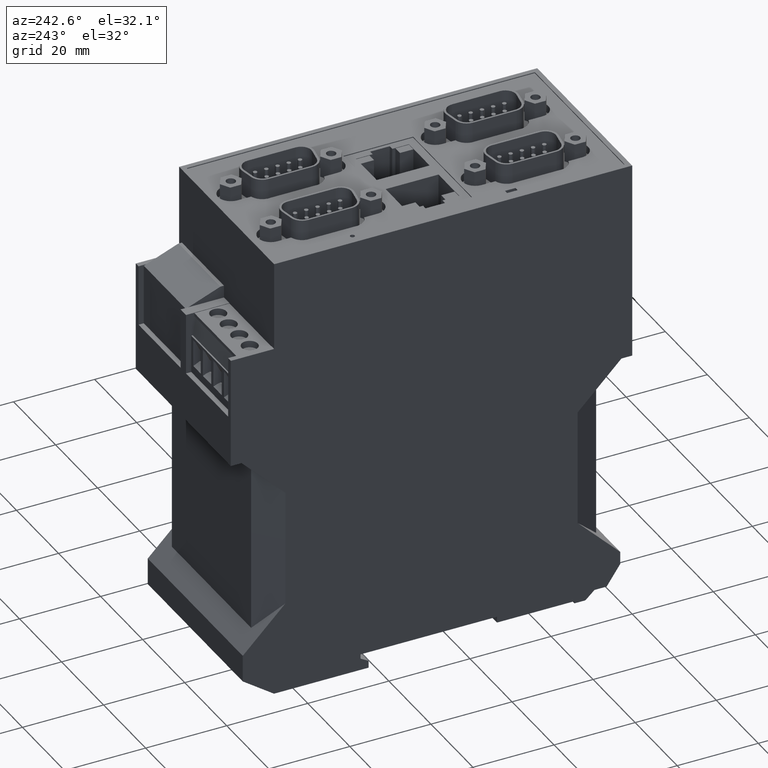
[diagram: clean part render]
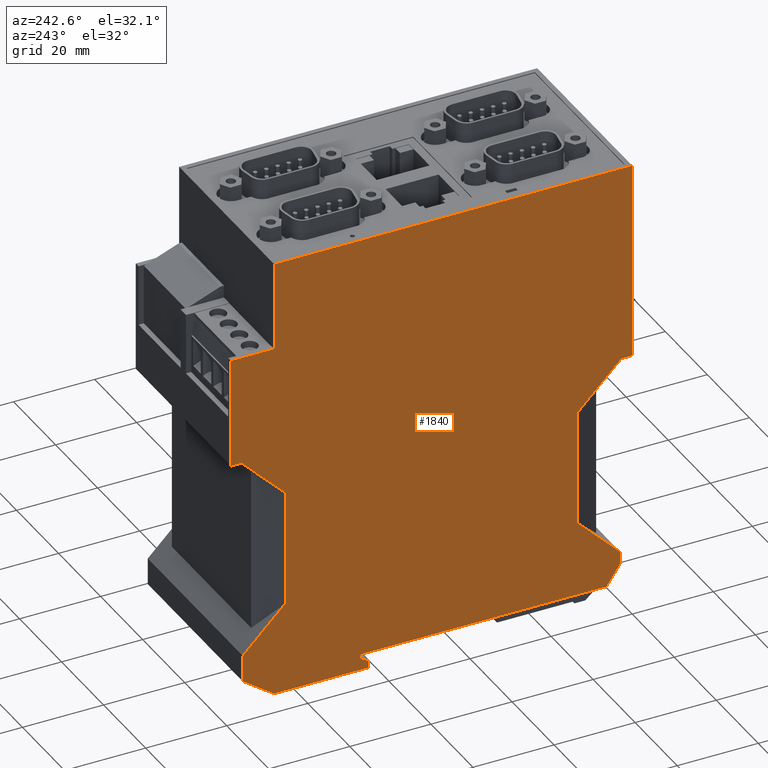
[diagram: same view with one face highlighted and labeled with its STEP entity id]
A machine part, auxiliary view. The second image highlights one B-rep face of the part: STEP entity #1840.
In plain terms, the highlighted planar face has unit normal (-1, 0, 0).
Its self-contained STEP definition (entity closure, byte-faithful):
#10=CARTESIAN_POINT('',(24.,24.,-11.3));
#20=DIRECTION('',(0.,0.,-1.));
#30=DIRECTION('',(-1.,0.,0.));
#40=AXIS2_PLACEMENT_3D('',#10,#20,#30);
#50=PLANE('',#40);
#60=CARTESIAN_POINT('',(24.,-7.14095449438901E-13,-11.3));
#70=DIRECTION('',(1.,-1.44E-14,-0.));
#80=VECTOR('',#70,1.);
#90=LINE('',#60,#80);
#100=CARTESIAN_POINT('',(-60.7000000000028,5.04485342389671E-13,-11.3));
#110=VERTEX_POINT('',#100);
#120=CARTESIAN_POINT('',(-1.76925141204265E-12,-3.69482222595252E-13,
-11.3));
#130=VERTEX_POINT('',#120);
#140=EDGE_CURVE('',#110,#130,#90,.T.);
#150=ORIENTED_EDGE('',*,*,#140,.F.);
#160=CARTESIAN_POINT('',(-1.76925141204265E-12,-3.69482222595252E-13,
-11.3));
#170=DIRECTION('',(-3.23004482157597E-15,-1.,0.));
#180=VECTOR('',#170,1.);
#190=LINE('',#160,#180);
#200=CARTESIAN_POINT('',(-1.76925141204265E-12,-1.09989609279425,-11.3))
;
#210=VERTEX_POINT('',#200);
#220=EDGE_CURVE('',#130,#210,#190,.T.);
#230=ORIENTED_EDGE('',*,*,#220,.F.);
#240=CARTESIAN_POINT('',(-1.77280412572145E-12,-1.09989609279425,-11.3))
;
#250=DIRECTION('',(-0.86602540378446,-0.499999999999964,0.));
#260=VECTOR('',#250,1.);
#270=LINE('',#240,#260);
#280=CARTESIAN_POINT('',(-2.00000000000178,-2.25459663117339,-11.3));
#290=VERTEX_POINT('',#280);
#300=EDGE_CURVE('',#210,#290,#270,.T.);
#310=ORIENTED_EDGE('',*,*,#300,.F.);
#320=CARTESIAN_POINT('',(-2.00000000000288,24.,-11.3));
#330=DIRECTION('',(4.27899157140077E-14,-1.,-0.));
#340=VECTOR('',#330,1.);
#350=LINE('',#320,#340);
#360=CARTESIAN_POINT('',(-2.00000000000178,-4.00000000000004,-11.3));
#370=VERTEX_POINT('',#360);
#380=EDGE_CURVE('',#290,#370,#350,.T.);
#390=ORIENTED_EDGE('',*,*,#380,.F.);
#400=CARTESIAN_POINT('',(24.,-4.00000000000004,-11.3));
#410=DIRECTION('',(1.,4.80965890943096E-26,0.));
#420=VECTOR('',#410,1.);
#430=LINE('',#400,#420);
#440=CARTESIAN_POINT('',(21.3380007636733,-4.00000000000004,-11.3));
#450=VERTEX_POINT('',#440);
#460=EDGE_CURVE('',#370,#450,#430,.T.);
#470=ORIENTED_EDGE('',*,*,#460,.F.);
#480=CARTESIAN_POINT('',(24.,-2.13604806801552,-11.3));
#490=DIRECTION('',(0.819152044288986,0.573576436351054,0.));
#500=VECTOR('',#490,1.);
#510=LINE('',#480,#500);
#520=CARTESIAN_POINT('',(29.0500000000947,1.40000000000989,-11.3));
#530=VERTEX_POINT('',#520);
#540=EDGE_CURVE('',#450,#530,#510,.T.);
#550=ORIENTED_EDGE('',*,*,#540,.F.);
#560=CARTESIAN_POINT('',(29.0500000000947,1.40000000001025,-11.3));
#570=DIRECTION('',(2.15315980533829E-15,1.,0.));
#580=VECTOR('',#570,1.);
#590=LINE('',#560,#580);
#600=CARTESIAN_POINT('',(29.0500000000947,7.99999999999599,-11.3));
#610=VERTEX_POINT('',#600);
#620=EDGE_CURVE('',#530,#610,#590,.T.);
#630=ORIENTED_EDGE('',*,*,#620,.F.);
#640=CARTESIAN_POINT('',(24.,13.0500000000897,-11.3));
#650=DIRECTION('',(-0.707106781186613,0.707106781186482,0.));
#660=VECTOR('',#650,1.);
#670=LINE('',#640,#660);
#680=CARTESIAN_POINT('',(18.55000000009,18.4999999999987,-11.3));
#690=VERTEX_POINT('',#680);
#700=EDGE_CURVE('',#610,#690,#670,.T.);
#710=ORIENTED_EDGE('',*,*,#700,.F.);
#720=CARTESIAN_POINT('',(18.5500000000901,24.,-11.3));
#730=DIRECTION('',(4.E-15,1.,0.));
#740=VECTOR('',#730,1.);
#750=LINE('',#720,#740);
#760=CARTESIAN_POINT('',(18.5500000000902,47.1000000000011,-11.3));
#770=VERTEX_POINT('',#760);
#780=EDGE_CURVE('',#690,#770,#750,.T.);
#790=ORIENTED_EDGE('',*,*,#780,.F.);
#800=CARTESIAN_POINT('',(24.,52.5499999999109,-11.3));
#810=DIRECTION('',(0.707106781186551,0.707106781186544,0.));
#820=VECTOR('',#810,1.);
#830=LINE('',#800,#820);
#840=CARTESIAN_POINT('',(29.3500000000902,57.900000000001,-11.3));
#850=VERTEX_POINT('',#840);
#860=EDGE_CURVE('',#770,#850,#830,.T.);
#870=ORIENTED_EDGE('',*,*,#860,.F.);
#880=CARTESIAN_POINT('',(24.,57.9000000000005,-11.3));
#890=DIRECTION('',(1.,9.89E-14,0.));
#900=VECTOR('',#890,1.);
#910=LINE('',#880,#900);
#920=CARTESIAN_POINT('',(32.0000000000386,57.9000000000013,-11.3));
#930=VERTEX_POINT('',#920);
#940=EDGE_CURVE('',#850,#930,#910,.T.);
#950=ORIENTED_EDGE('',*,*,#940,.F.);
#960=CARTESIAN_POINT('',(32.0000000000633,24.,-11.3));
#970=DIRECTION('',(7.27300000002176E-13,-1.,-0.));
#980=VECTOR('',#970,1.);
#990=LINE('',#960,#980);
#1000=CARTESIAN_POINT('',(32.0000000000188,85.1000000000079,-11.3));
#1010=VERTEX_POINT('',#1000);
#1020=EDGE_CURVE('',#1010,#930,#990,.T.);
#1030=ORIENTED_EDGE('',*,*,#1020,.T.);
#1040=CARTESIAN_POINT('',(24.,85.1000000000079,-11.3));
#1050=DIRECTION('',(-1.,-2.17588503379895E-24,0.));
#1060=VECTOR('',#1050,1.);
#1070=LINE('',#1040,#1060);
#1080=CARTESIAN_POINT('',(21.3000000000241,85.1000000000079,-11.3));
#1090=VERTEX_POINT('',#1080);
#1100=EDGE_CURVE('',#1010,#1090,#1070,.T.);
#1110=ORIENTED_EDGE('',*,*,#1100,.F.);
#1120=CARTESIAN_POINT('',(21.3000000000241,24.,-11.3));
#1130=DIRECTION('',(-2.17588503380295E-24,1.,0.));
#1140=VECTOR('',#1130,1.);
#1150=LINE('',#1120,#1140);
#1160=CARTESIAN_POINT('',(21.3000000000241,106.999999999943,-11.3));
#1170=VERTEX_POINT('',#1160);
#1180=EDGE_CURVE('',#1090,#1170,#1150,.T.);
#1190=ORIENTED_EDGE('',*,*,#1180,.F.);
#1200=CARTESIAN_POINT('',(24.,106.999999999941,-11.3));
#1210=DIRECTION('',(-1.,7.38964445188328E-13,0.));
#1220=VECTOR('',#1210,1.);
#1230=LINE('',#1200,#1220);
#1240=CARTESIAN_POINT('',(-66.9999999999093,107.000000000009,-11.3));
#1250=VERTEX_POINT('',#1240);
#1260=EDGE_CURVE('',#1170,#1250,#1230,.T.);
#1270=ORIENTED_EDGE('',*,*,#1260,.F.);
#1280=CARTESIAN_POINT('',(-66.9999999999093,24.,-11.3));
#1290=DIRECTION('',(0.,1.,0.));
#1300=VECTOR('',#1290,1.);
#1310=LINE('',#1280,#1300);
#1320=CARTESIAN_POINT('',(-66.9999999999093,57.9000000000013,-11.3));
#1330=VERTEX_POINT('',#1320);
#1340=EDGE_CURVE('',#1330,#1250,#1310,.T.);
#1350=ORIENTED_EDGE('',*,*,#1340,.T.);
#1360=CARTESIAN_POINT('',(24.,57.8999999999923,-11.3));
#1370=DIRECTION('',(-1.,9.89E-14,0.));
#1380=VECTOR('',#1370,1.);
#1390=LINE('',#1360,#1380);
#1400=CARTESIAN_POINT('',(-64.3500000000018,57.900000000001,-11.3));
#1410=VERTEX_POINT('',#1400);
#1420=EDGE_CURVE('',#1410,#1330,#1390,.T.);
#1430=ORIENTED_EDGE('',*,*,#1420,.T.);
#1440=CARTESIAN_POINT('',(24.,-30.45,-11.3));
#1450=DIRECTION('',(0.707106781186551,-0.707106781186544,-0.));
#1460=VECTOR('',#1450,1.);
#1470=LINE('',#1440,#1460);
#1480=CARTESIAN_POINT('',(-53.5500000000017,47.1000000000011,-11.3));
#1490=VERTEX_POINT('',#1480);
#1500=EDGE_CURVE('',#1410,#1490,#1470,.T.);
#1510=ORIENTED_EDGE('',*,*,#1500,.F.);
#1520=CARTESIAN_POINT('',(-53.5500000000017,24.,-11.3));
#1530=DIRECTION('',(0.,1.,0.));
#1540=VECTOR('',#1530,1.);
#1550=LINE('',#1520,#1540);
#1560=CARTESIAN_POINT('',(-53.5500000000018,18.4999999999986,-11.3));
#1570=VERTEX_POINT('',#1560);
#1580=EDGE_CURVE('',#1570,#1490,#1550,.T.);
#1590=ORIENTED_EDGE('',*,*,#1580,.T.);
#1600=CARTESIAN_POINT('',(24.,96.049999999986,-11.3));
#1610=DIRECTION('',(-0.707106781186613,-0.707106781186482,0.));
#1620=VECTOR('',#1610,1.);
#1630=LINE('',#1600,#1620);
#1640=CARTESIAN_POINT('',(-64.0500000000063,7.99999999999596,-11.3));
#1650=VERTEX_POINT('',#1640);
#1660=EDGE_CURVE('',#1570,#1650,#1630,.T.);
#1670=ORIENTED_EDGE('',*,*,#1660,.F.);
#1680=CARTESIAN_POINT('',(-64.0500000000063,24.,-11.3));
#1690=DIRECTION('',(0.,-1.,0.));
#1700=VECTOR('',#1690,1.);
#1710=LINE('',#1680,#1700);
#1720=CARTESIAN_POINT('',(-64.0500000000063,4.90000000001318,-11.3));
#1730=VERTEX_POINT('',#1720);
#1740=EDGE_CURVE('',#1650,#1730,#1710,.T.);
#1750=ORIENTED_EDGE('',*,*,#1740,.F.);
#1760=CARTESIAN_POINT('',(-77.1081632652836,24.,-11.3));
#1770=DIRECTION('',(-0.564381899303651,0.825513822863314,0.));
#1780=VECTOR('',#1770,1.);
#1790=LINE('',#1760,#1780);
#1800=EDGE_CURVE('',#110,#1730,#1790,.T.);
#1810=ORIENTED_EDGE('',*,*,#1800,.T.);
#1820=EDGE_LOOP('',(#1810,#1750,#1670,#1590,#1510,#1430,#1350,#1270,
#1190,#1110,#1030,#950,#870,#790,#710,#630,#550,#470,#390,#310,#230,#150
));
#1830=FACE_OUTER_BOUND('',#1820,.T.);
#1840=ADVANCED_FACE('',(#1830),#50,.T.);